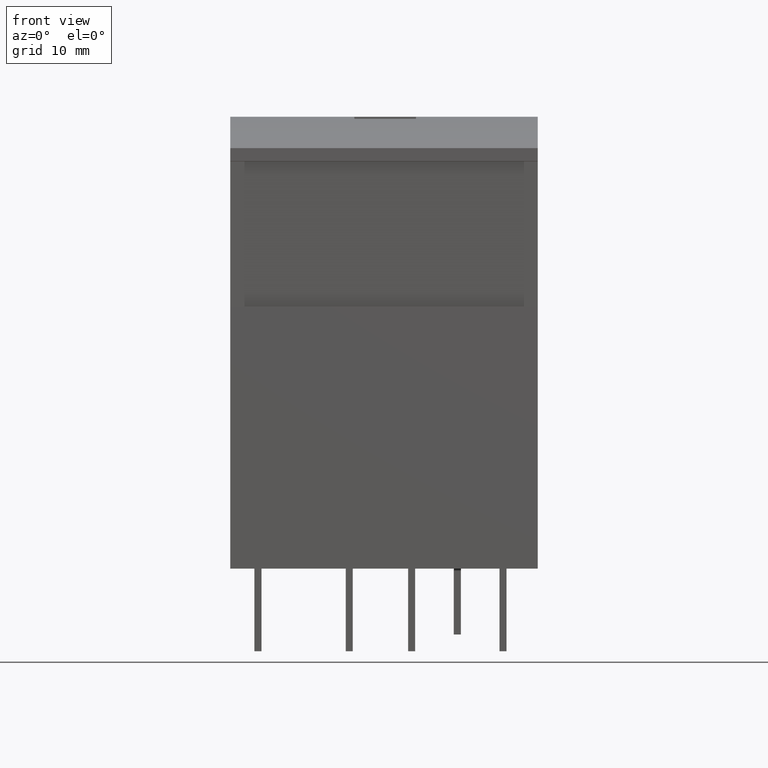
[diagram: clean part render]
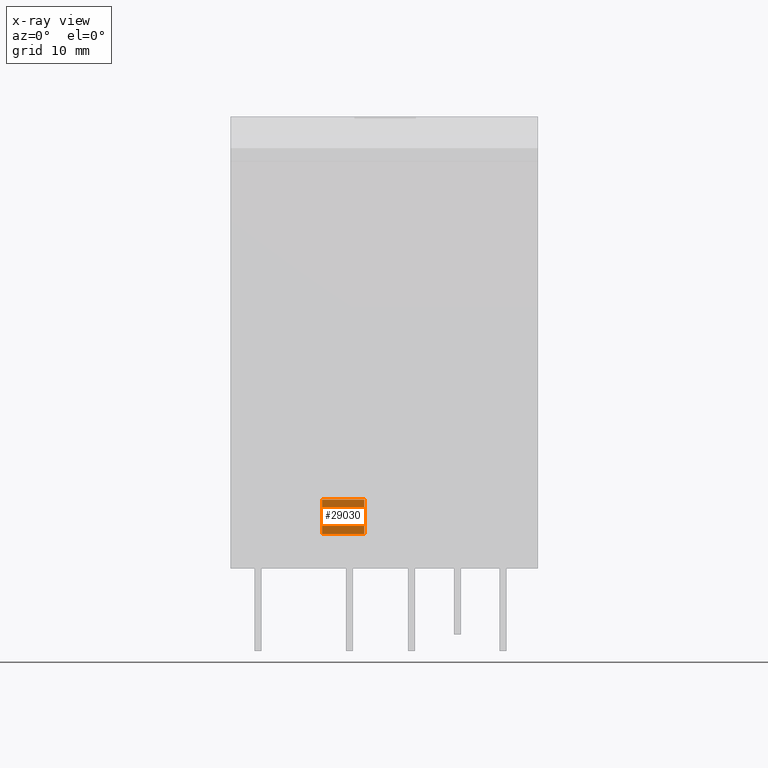
[diagram: x-ray — body ghosted, one internal face saturated and labeled with its STEP entity id]
A machine part, front view, then the same camera in x-ray: the body is ghosted and one INTERNAL B-rep face — a face not visible from any outside direction — is saturated and labeled: STEP entity #29030.
In plain terms, the highlighted planar face has unit normal (0, 1, -0).
Its self-contained STEP definition (entity closure, byte-faithful):
#25350=CARTESIAN_POINT('',(137.890137793095,174.165880918266,
86.8522578576143));
#25360=VERTEX_POINT('',#25350);
#25390=CARTESIAN_POINT('',(137.890137793095,174.165880918266,
46.1522574287161));
#25400=DIRECTION('',(4.60826665363901E-15,-7.51442445055605E-19,-1.));
#25410=VECTOR('',#25400,1.);
#25420=LINE('',#25390,#25410);
#25430=CARTESIAN_POINT('',(137.890137793095,174.165880918266,
82.0522578576143));
#25440=VERTEX_POINT('',#25430);
#25450=EDGE_CURVE('',#25360,#25440,#25420,.T.);
#26390=CARTESIAN_POINT('',(137.890137793095,175.265880918266,
82.0522578576143));
#26400=DIRECTION('',(1.20996962449382E-16,-1.,7.51442445056162E-19));
#26410=VECTOR('',#26400,1.);
#26420=LINE('',#26390,#26410);
#26430=CARTESIAN_POINT('',(137.890137793095,170.265880918266,
82.0522578576143));
#26440=VERTEX_POINT('',#26430);
#26450=EDGE_CURVE('',#25440,#26440,#26420,.T.);
#26710=CARTESIAN_POINT('',(137.890137793095,170.265880918266,
60.0907168576143));
#26720=DIRECTION('',(-4.60826665363901E-15,-1.10914041956216E-16,1.));
#26730=VECTOR('',#26720,1.);
#26740=LINE('',#26710,#26730);
#26750=CARTESIAN_POINT('',(137.890137793095,170.265880918266,
86.8522578576143));
#26760=VERTEX_POINT('',#26750);
#26770=EDGE_CURVE('',#26440,#26760,#26740,.T.);
#28750=CARTESIAN_POINT('',(137.890137793095,175.265880918266,
86.8522578576143));
#28760=DIRECTION('',(1.20996962449382E-16,-1.,7.51442445056162E-19));
#28770=VECTOR('',#28760,1.);
#28780=LINE('',#28750,#28770);
#28790=EDGE_CURVE('',#25360,#26760,#28780,.T.);
#28920=CARTESIAN_POINT('',(137.890137793095,174.165880918266,
82.0522578576143));
#28930=DIRECTION('',(-1.,-1.20996962449382E-16,-4.60826665363901E-15));
#28940=DIRECTION('',(-4.60826665363901E-15,7.51442445055605E-19,1.));
#28950=AXIS2_PLACEMENT_3D('',#28920,#28930,#28940);
#28960=PLANE('',#28950);
#28970=ORIENTED_EDGE('',*,*,#28790,.F.);
#28980=ORIENTED_EDGE('',*,*,#26770,.T.);
#28990=ORIENTED_EDGE('',*,*,#26450,.T.);
#29000=ORIENTED_EDGE('',*,*,#25450,.T.);
#29010=EDGE_LOOP('',(#29000,#28990,#28980,#28970));
#29020=FACE_OUTER_BOUND('',#29010,.T.);
#29030=ADVANCED_FACE('',(#29020),#28960,.T.);